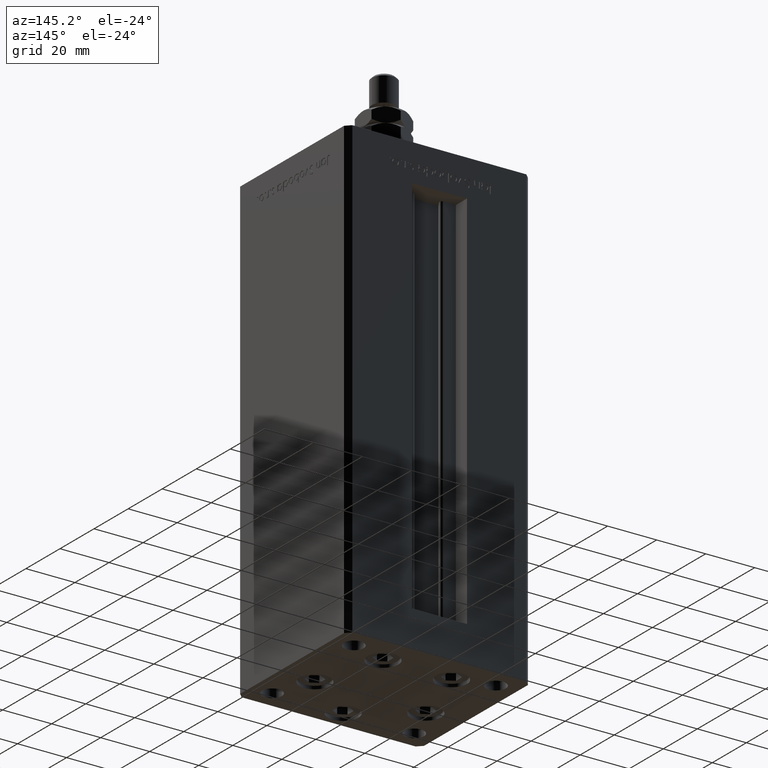
[diagram: clean part render]
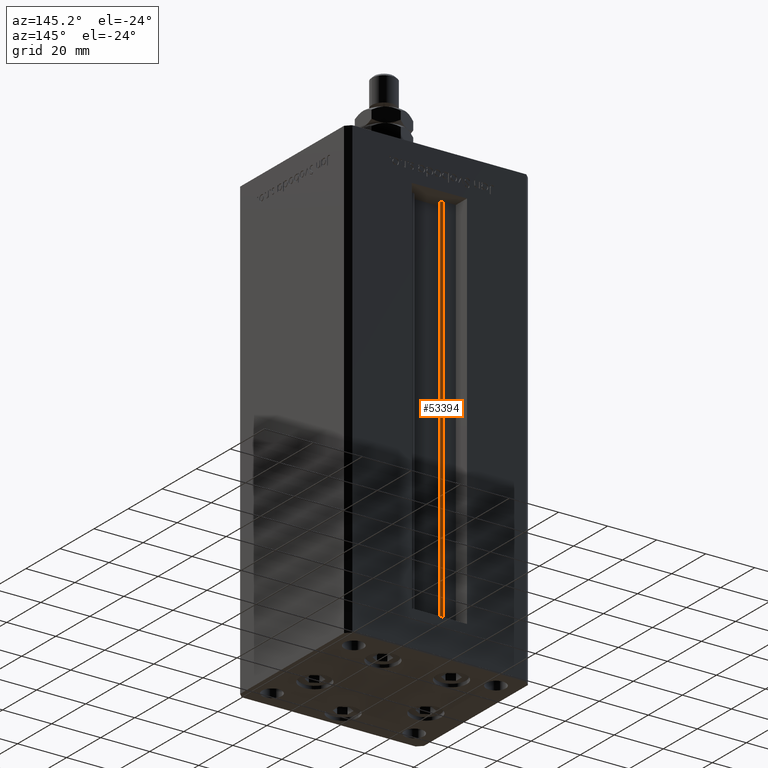
[diagram: same view with one face highlighted and labeled with its STEP entity id]
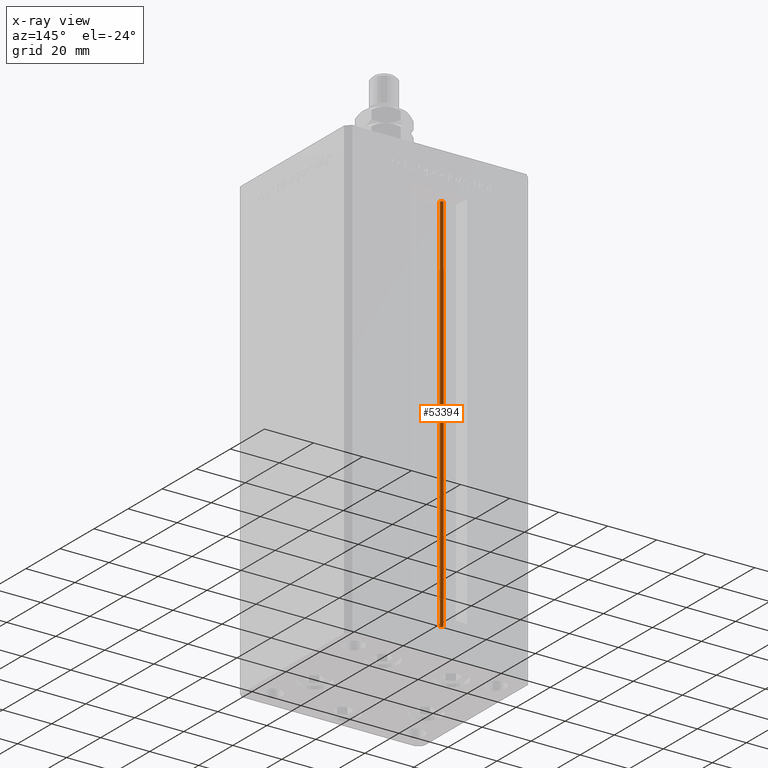
[diagram: x-ray of the same camera — body ghosted, the highlighted face saturated]
A machine part, auxiliary view. The second image highlights one B-rep face of the part: STEP entity #53394.
The next image is the same camera in x-ray: the body ghosted, the highlighted face saturated — about 0% of this face is hidden behind the body in this view.
In plain terms, the highlighted cylindrical surface (edge-blend (fillet) strip) has radius 0.9333 mm, axis along (0, 0, 1).
Its self-contained STEP definition (entity closure, byte-faithful):
#200 = CARTESIAN_POINT ( 'NONE',  ( -6.183333333334001480, 25.99999999999999289, 0.000000000000000000 ) ) ;
#264 = VERTEX_POINT ( 'NONE', #42282 ) ;
#1811 = CARTESIAN_POINT ( 'NONE',  ( -6.183333333334001480, 25.99999999999999289, 156.0000000000000000 ) ) ;
#2755 = CARTESIAN_POINT ( 'NONE',  ( -6.183333333334001480, 25.06666666666599141, 0.000000000000000000 ) ) ;
#4916 = ORIENTED_EDGE ( 'NONE', *, *, #25180, .T. ) ;
#6670 = EDGE_CURVE ( 'NONE', #17934, #264, #17234, .T. ) ;
#6853 = AXIS2_PLACEMENT_3D ( 'NONE', #10464, #47422, #15076 ) ;
#8514 = DIRECTION ( 'NONE',  ( -0.000000000000000000, -0.000000000000000000, 1.000000000000000000 ) ) ;
#9384 = CARTESIAN_POINT ( 'NONE',  ( -6.183333333334001480, 25.99999999999999289, 0.000000000000000000 ) ) ;
#10218 = FACE_OUTER_BOUND ( 'NONE', #17943, .T. ) ;
#10464 = CARTESIAN_POINT ( 'NONE',  ( -6.183333333334001480, 25.06666666666599141, 156.0000000000000000 ) ) ;
#11033 = CARTESIAN_POINT ( 'NONE',  ( -6.183333333334001480, 25.06666666666599141, 0.000000000000000000 ) ) ;
#11728 = VECTOR ( 'NONE', #8514, 1000.000000000000000 ) ;
#13224 = DIRECTION ( 'NONE',  ( -0.000000000000000000, -0.000000000000000000, 1.000000000000000000 ) ) ;
#13631 = LINE ( 'NONE', #21785, #11728 ) ;
#15076 = DIRECTION ( 'NONE',  ( 1.000000000000000000, 0.000000000000000000, 0.000000000000000000 ) ) ;
#15100 = DIRECTION ( 'NONE',  ( 1.000000000000000000, 0.000000000000000000, 0.000000000000000000 ) ) ;
#15135 = VECTOR ( 'NONE', #13224, 1000.000000000000000 ) ;
#17234 = CIRCLE ( 'NONE', #6853, 0.9333333333340008142 ) ;
#17934 = VERTEX_POINT ( 'NONE', #1811 ) ;
#17943 = EDGE_LOOP ( 'NONE', ( #36068, #46631, #4916, #20694 ) ) ;
#20694 = ORIENTED_EDGE ( 'NONE', *, *, #6670, .T. ) ;
#21785 = CARTESIAN_POINT ( 'NONE',  ( -5.250000000000000000, 25.06666666666599141, 0.000000000000000000 ) ) ;
#22539 = AXIS2_PLACEMENT_3D ( 'NONE', #11033, #51520, #15100 ) ;
#23307 = CARTESIAN_POINT ( 'NONE',  ( -5.250000000000000000, 25.06666666666599141, 0.000000000000000000 ) ) ;
#25180 = EDGE_CURVE ( 'NONE', #52780, #17934, #37426, .T. ) ;
#26927 = DIRECTION ( 'NONE',  ( 1.000000000000000000, 0.000000000000000000, 0.000000000000000000 ) ) ;
#27453 = EDGE_CURVE ( 'NONE', #47233, #264, #13631, .T. ) ;
#28241 = EDGE_CURVE ( 'NONE', #52780, #47233, #31555, .T. ) ;
#31394 = CYLINDRICAL_SURFACE ( 'NONE', #22539, 0.9333333333340008142 ) ;
#31555 = CIRCLE ( 'NONE', #33316, 0.9333333333340008142 ) ;
#33316 = AXIS2_PLACEMENT_3D ( 'NONE', #2755, #51935, #26927 ) ;
#36068 = ORIENTED_EDGE ( 'NONE', *, *, #27453, .F. ) ;
#37426 = LINE ( 'NONE', #200, #15135 ) ;
#42282 = CARTESIAN_POINT ( 'NONE',  ( -5.250000000000000000, 25.06666666666599141, 156.0000000000000000 ) ) ;
#46631 = ORIENTED_EDGE ( 'NONE', *, *, #28241, .F. ) ;
#47233 = VERTEX_POINT ( 'NONE', #23307 ) ;
#47422 = DIRECTION ( 'NONE',  ( 0.000000000000000000, 0.000000000000000000, -1.000000000000000000 ) ) ;
#51520 = DIRECTION ( 'NONE',  ( -0.000000000000000000, -0.000000000000000000, 1.000000000000000000 ) ) ;
#51935 = DIRECTION ( 'NONE',  ( -0.000000000000000000, -0.000000000000000000, -1.000000000000000000 ) ) ;
#52780 = VERTEX_POINT ( 'NONE', #9384 ) ;
#53394 = ADVANCED_FACE ( 'NONE', ( #10218 ), #31394, .T. ) ;